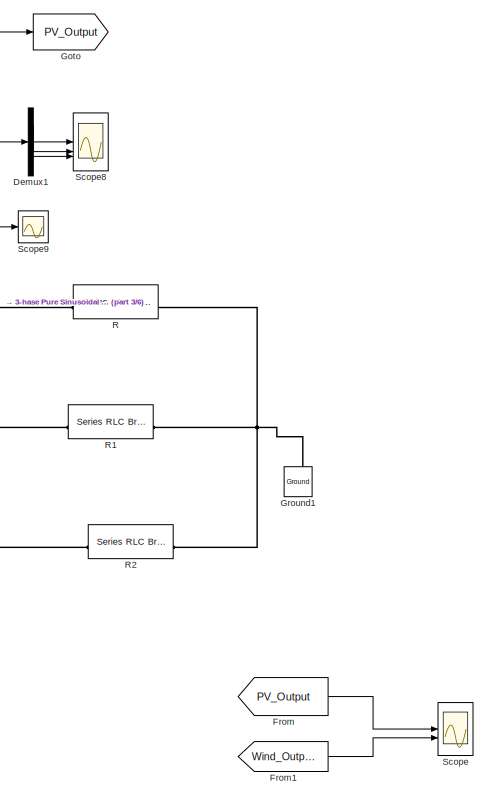
[diagram: root canvas - part 1/6, top right region]
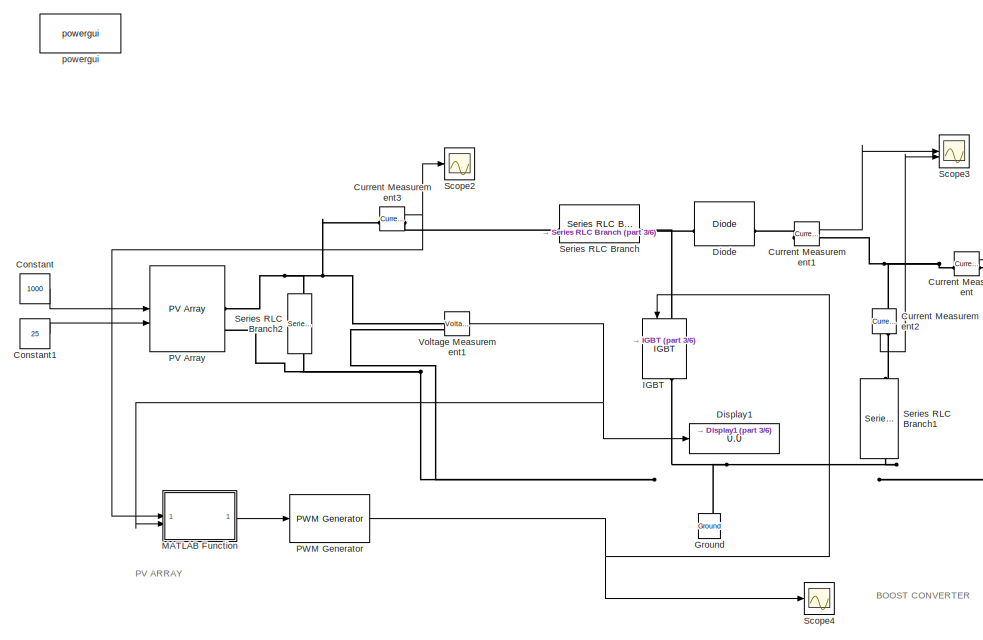
[diagram: root canvas - part 2/6, top left region]
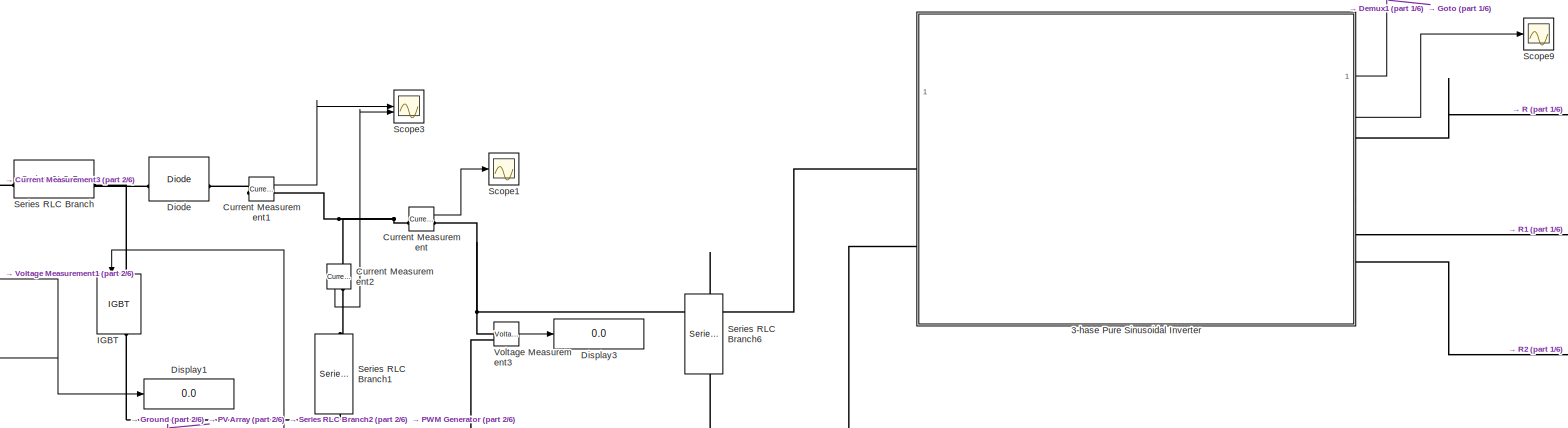
[diagram: root canvas - part 3/6, top center region]
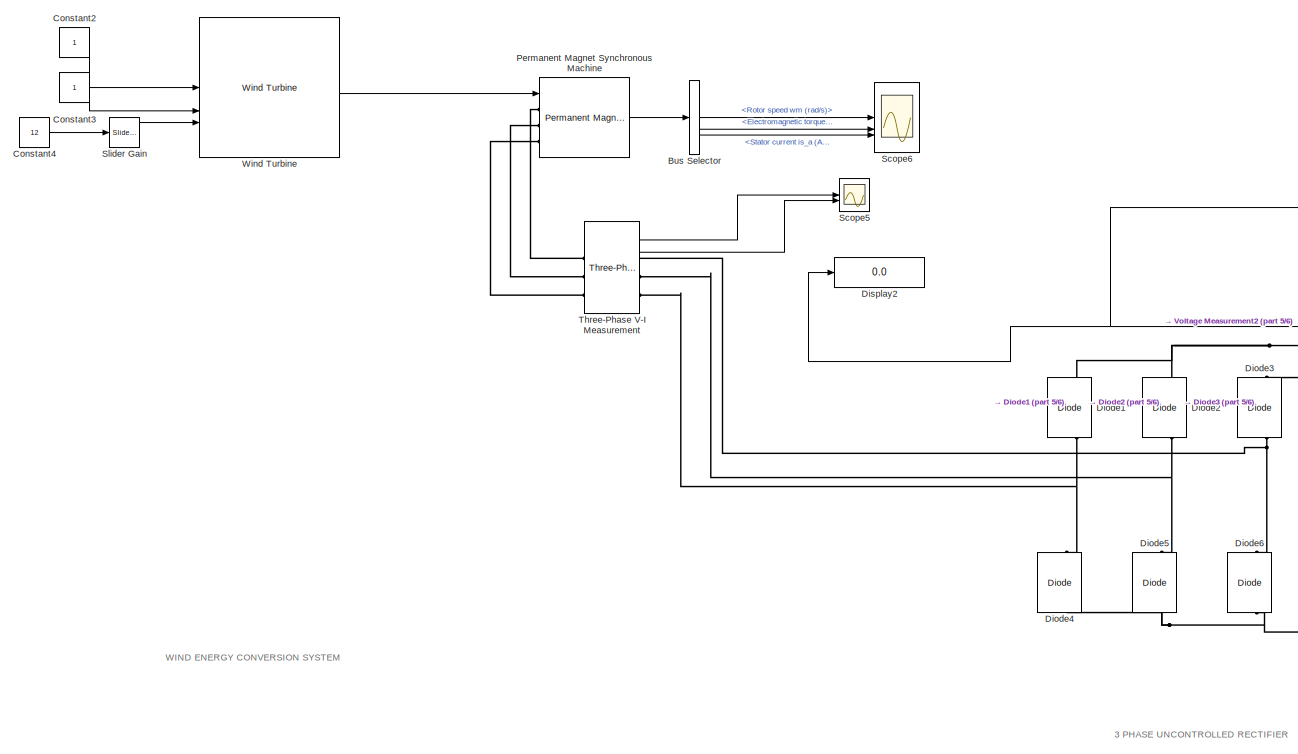
[diagram: root canvas - part 4/6, bottom left region]
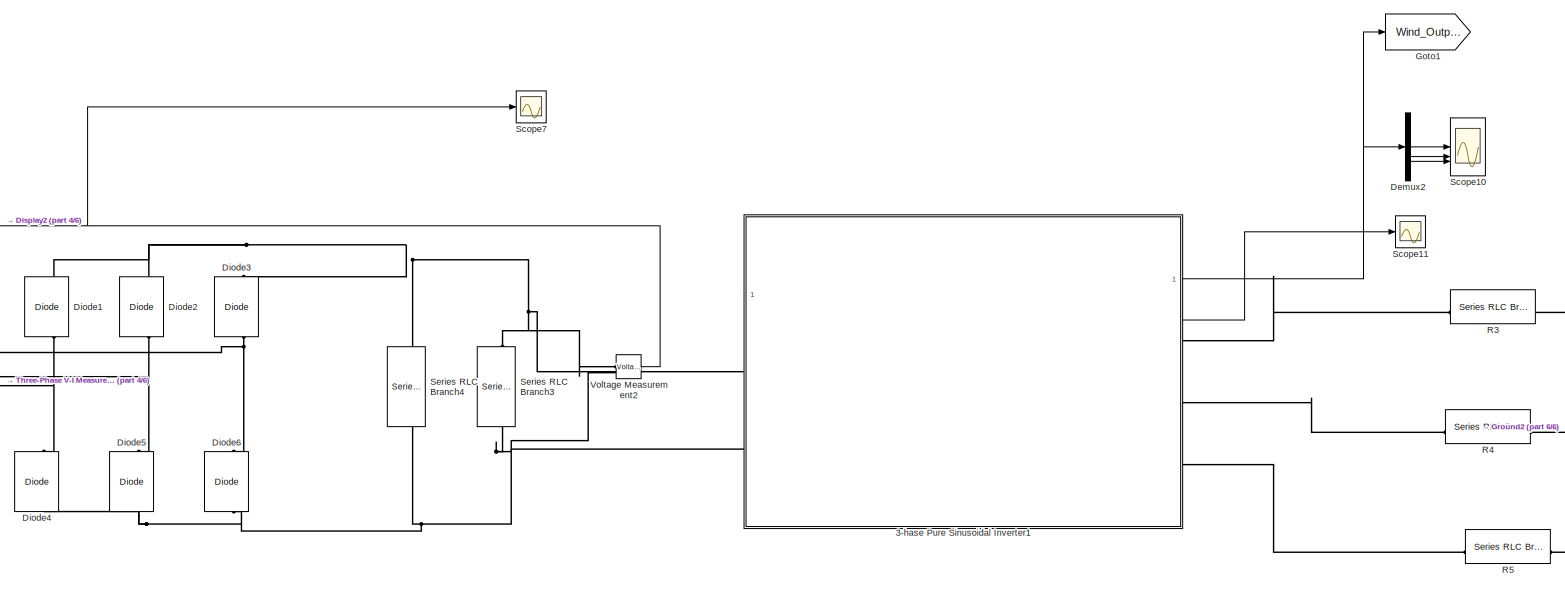
[diagram: root canvas - part 5/6, bottom center region]
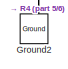
[diagram: root canvas - part 6/6, bottom right region]
MODEL slx_756d990b1790
KIND model
CONFIG AbsTol = auto
CONFIG EnableMultiTasking = off
CONFIG FixedStep = auto
CONFIG MaxStep = auto
CONFIG MinStep = auto
CONFIG RelTol = 1e-3
CONFIG SampleTimeConstraint = Unconstrained
CONFIG SolverName = VariableStepAuto
CONFIG StartTime = 0.0
CONFIG StopTime = 1
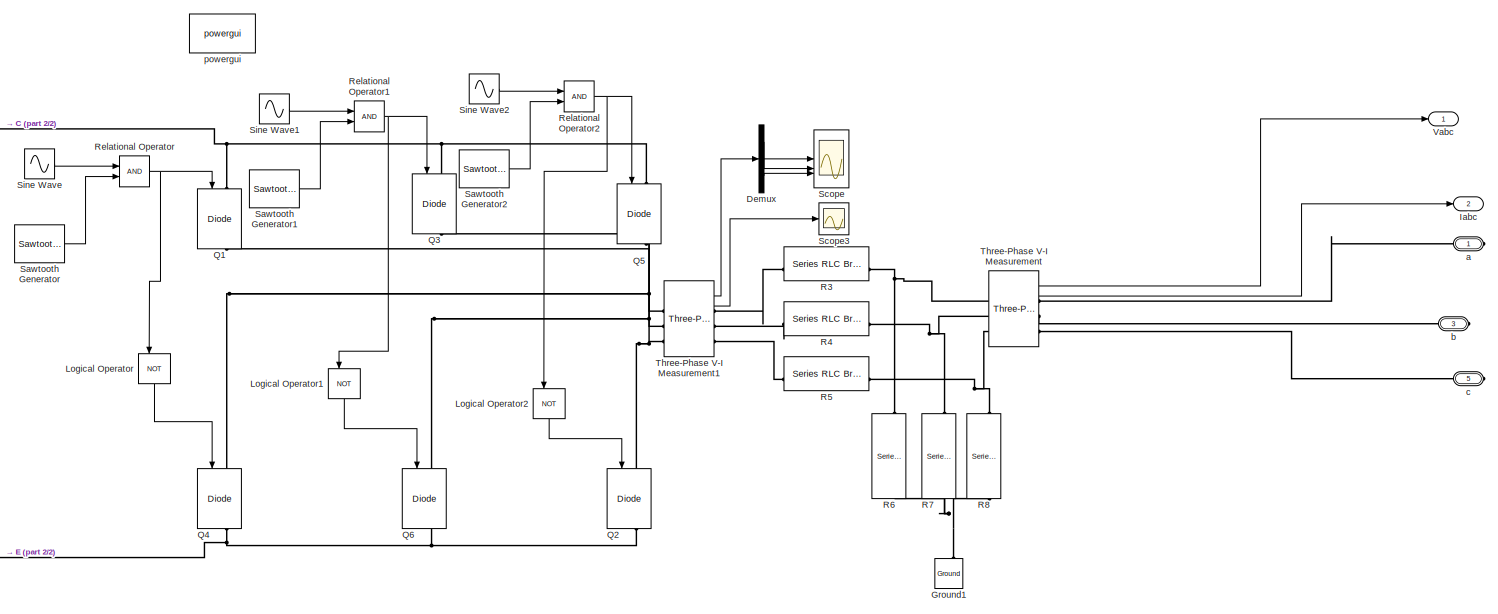
[diagram: 3-hase Pure Sinusoidal Inverter - part 1/2, most of the canvas]
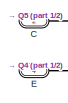
[diagram: 3-hase Pure Sinusoidal Inverter - part 2/2, middle left region]
BLOCK [SubSystem] 3-hase Pure Sinusoidal Inverter
BLOCK [PMIOPort] 3-hase Pure Sinusoidal Inverter/C
  Port = 2
  Side = Left
BLOCK [Demux] 3-hase Pure Sinusoidal Inverter/Demux
  Outputs = 3
BLOCK [PMIOPort] 3-hase Pure Sinusoidal Inverter/E
  Port = 4
  Side = Left
BLOCK [Reference] 3-hase Pure Sinusoidal Inverter/Ground1  REF=spsGroundLib/Ground
  LibrarySourceBlock = sps_lib/Utilities/Ground
  NameLocation = right
  SourceBlock = spsGroundLib/Ground
  SourceType = Ground
BLOCK [Outport] 3-hase Pure Sinusoidal Inverter/Iabc
  Port = 2
BLOCK [Logic] 3-hase Pure Sinusoidal Inverter/Logical Operator
  AllPortsSameDT = off
  NameLocation = left
  Operator = NOT
  OutDataTypeStr = boolean
BLOCK [Logic] 3-hase Pure Sinusoidal Inverter/Logical Operator1
  AllPortsSameDT = off
  NameLocation = left
  Operator = NOT
  OutDataTypeStr = boolean
BLOCK [Logic] 3-hase Pure Sinusoidal Inverter/Logical Operator2
  AllPortsSameDT = off
  NameLocation = left
  Operator = NOT
  OutDataTypeStr = boolean
BLOCK [Reference] 3-hase Pure Sinusoidal Inverter/Q1  REF=spsIGBTDiodeLib/IGBT//Diode
  LibrarySourceBlock = sps_lib/Power Electronics/IGBT//Diode
  NameLocation = left
  SourceBlock = spsIGBTDiodeLib/IGBT//Diode
  SourceType = IGBT/Diode
BLOCK [Reference] 3-hase Pure Sinusoidal Inverter/Q2  REF=spsIGBTDiodeLib/IGBT//Diode
  LibrarySourceBlock = sps_lib/Power Electronics/IGBT//Diode
  NameLocation = left
  SourceBlock = spsIGBTDiodeLib/IGBT//Diode
  SourceType = IGBT/Diode
BLOCK [Reference] 3-hase Pure Sinusoidal Inverter/Q3  REF=spsIGBTDiodeLib/IGBT//Diode
  LibrarySourceBlock = sps_lib/Power Electronics/IGBT//Diode
  NameLocation = left
  SourceBlock = spsIGBTDiodeLib/IGBT//Diode
  SourceType = IGBT/Diode
BLOCK [Reference] 3-hase Pure Sinusoidal Inverter/Q4  REF=spsIGBTDiodeLib/IGBT//Diode
  LibrarySourceBlock = sps_lib/Power Electronics/IGBT//Diode
  NameLocation = left
  SourceBlock = spsIGBTDiodeLib/IGBT//Diode
  SourceType = IGBT/Diode
BLOCK [Reference] 3-hase Pure Sinusoidal Inverter/Q5  REF=spsIGBTDiodeLib/IGBT//Diode
  LibrarySourceBlock = sps_lib/Power Electronics/IGBT//Diode
  NameLocation = left
  SourceBlock = spsIGBTDiodeLib/IGBT//Diode
  SourceType = IGBT/Diode
BLOCK [Reference] 3-hase Pure Sinusoidal Inverter/Q6  REF=spsIGBTDiodeLib/IGBT//Diode
  LibrarySourceBlock = sps_lib/Power Electronics/IGBT//Diode
  NameLocation = left
  SourceBlock = spsIGBTDiodeLib/IGBT//Diode
  SourceType = IGBT/Diode
BLOCK [Reference] 3-hase Pure Sinusoidal Inverter/R3  REF=spsSeriesRLCBranchLib/Series RLC Branch
  LibrarySourceBlock = sps_lib/Passives/Series RLC Branch
  SourceBlock = spsSeriesRLCBranchLib/Series RLC Branch
  SourceType = Series RLC Branch
BLOCK [Reference] 3-hase Pure Sinusoidal Inverter/R4  REF=spsSeriesRLCBranchLib/Series RLC Branch
  LibrarySourceBlock = sps_lib/Passives/Series RLC Branch
  SourceBlock = spsSeriesRLCBranchLib/Series RLC Branch
  SourceType = Series RLC Branch
BLOCK [Reference] 3-hase Pure Sinusoidal Inverter/R5  REF=spsSeriesRLCBranchLib/Series RLC Branch
  LibrarySourceBlock = sps_lib/Passives/Series RLC Branch
  SourceBlock = spsSeriesRLCBranchLib/Series RLC Branch
  SourceType = Series RLC Branch
BLOCK [Reference] 3-hase Pure Sinusoidal Inverter/R6  REF=spsSeriesRLCBranchLib/Series RLC Branch
  LibrarySourceBlock = sps_lib/Passives/Series RLC Branch
  NameLocation = left
  SourceBlock = spsSeriesRLCBranchLib/Series RLC Branch
  SourceType = Series RLC Branch
BLOCK [Reference] 3-hase Pure Sinusoidal Inverter/R7  REF=spsSeriesRLCBranchLib/Series RLC Branch
  LibrarySourceBlock = sps_lib/Passives/Series RLC Branch
  NameLocation = left
  SourceBlock = spsSeriesRLCBranchLib/Series RLC Branch
  SourceType = Series RLC Branch
BLOCK [Reference] 3-hase Pure Sinusoidal Inverter/R8  REF=spsSeriesRLCBranchLib/Series RLC Branch
  LibrarySourceBlock = sps_lib/Passives/Series RLC Branch
  NameLocation = left
  SourceBlock = spsSeriesRLCBranchLib/Series RLC Branch
  SourceType = Series RLC Branch
BLOCK [RelationalOperator] 3-hase Pure Sinusoidal Inverter/Relational Operator
  InputSameDT = off
  OutDataTypeStr = boolean
BLOCK [RelationalOperator] 3-hase Pure Sinusoidal Inverter/Relational Operator1
  InputSameDT = off
  OutDataTypeStr = boolean
BLOCK [RelationalOperator] 3-hase Pure Sinusoidal Inverter/Relational Operator2
  InputSameDT = off
  OutDataTypeStr = boolean
BLOCK [Reference] 3-hase Pure Sinusoidal Inverter/Sawtooth Generator  REF=spsSawtoothGeneratorLib/Sawtooth
Generator
  LibrarySourceBlock = sps_lib/Sources/Signal Generator Sources/Sawtooth\nGenerator
  SourceBlock = spsSawtoothGeneratorLib/Sawtooth\nGenerator
  SourceType = Sawtooth Generator
BLOCK [Reference] 3-hase Pure Sinusoidal Inverter/Sawtooth Generator1  REF=spsSawtoothGeneratorLib/Sawtooth
Generator
  LibrarySourceBlock = sps_lib/Sources/Signal Generator Sources/Sawtooth\nGenerator
  SourceBlock = spsSawtoothGeneratorLib/Sawtooth\nGenerator
  SourceType = Sawtooth Generator
BLOCK [Reference] 3-hase Pure Sinusoidal Inverter/Sawtooth Generator2  REF=spsSawtoothGeneratorLib/Sawtooth
Generator
  LibrarySourceBlock = sps_lib/Sources/Signal Generator Sources/Sawtooth\nGenerator
  SourceBlock = spsSawtoothGeneratorLib/Sawtooth\nGenerator
  SourceType = Sawtooth Generator
BLOCK [Scope] 3-hase Pure Sinusoidal Inverter/Scope
  Floating = off
  NumInputPorts = 3
  ScopeSpecificationString = Simulink.scopes.TimeScopeBlockCfg('CurrentConfiguration', extmgr.ConfigurationSet(extmgr.Configuration('Core','General UI',true),extmgr.Configuration('Core','Source UI',true),extmgr.Configuration('Sources','WiredSimulink',true,'DataLoggingLimitDataPoints',true,'DataLoggingSaveFormat','Array','DataLoggingDecimation','1','DataLoggingDecimateData',true),extmgr.Configuration('Visuals','Time Domain',tr...<+3310ch>
BLOCK [Scope] 3-hase Pure Sinusoidal Inverter/Scope3
  Floating = off
  NumInputPorts = 1
  ScopeSpecificationString = Simulink.scopes.TimeScopeBlockCfg('CurrentConfiguration', extmgr.ConfigurationSet(extmgr.Configuration('Core','General UI',true),extmgr.Configuration('Core','Source UI',true),extmgr.Configuration('Sources','WiredSimulink',true,'DataLoggingVariableName','ScopeData3'),extmgr.Configuration('Visuals','Time Domain',true),extmgr.Configuration('Tools','Plot Navigation',true),extmgr.Configuration('Tools',...<+40ch>
BLOCK [Sin] 3-hase Pure Sinusoidal Inverter/Sine Wave
  Amplitude = 0.9
  Frequency = 2*pi*50
  SampleTime = 0
BLOCK [Sin] 3-hase Pure Sinusoidal Inverter/Sine Wave1
  Amplitude = 0.9
  Frequency = 2*pi*50
  Phase = 120*(pi/180)
  SampleTime = 0
BLOCK [Sin] 3-hase Pure Sinusoidal Inverter/Sine Wave2
  Amplitude = 0.9
  Frequency = 2*pi*50
  Phase = 240*(pi/180)
  SampleTime = 0
BLOCK [Reference] 3-hase Pure Sinusoidal Inverter/Three-Phase V-I Measurement  REF=spsThreePhaseVIMeasurementLib/Three-Phase
V-I Measurement
  LibrarySourceBlock = sps_lib/Sensors and Measurements/Three-Phase\nV-I Measurement
  SourceBlock = spsThreePhaseVIMeasurementLib/Three-Phase\nV-I Measurement
  SourceType = Three-Phase VI Measurement
BLOCK [Reference] 3-hase Pure Sinusoidal Inverter/Three-Phase V-I Measurement1  REF=spsThreePhaseVIMeasurementLib/Three-Phase
V-I Measurement
  LibrarySourceBlock = sps_lib/Sensors and Measurements/Three-Phase\nV-I Measurement
  SourceBlock = spsThreePhaseVIMeasurementLib/Three-Phase\nV-I Measurement
  SourceType = Three-Phase VI Measurement
BLOCK [Outport] 3-hase Pure Sinusoidal Inverter/Vabc
BLOCK [PMIOPort] 3-hase Pure Sinusoidal Inverter/a
  Side = Right
BLOCK [PMIOPort] 3-hase Pure Sinusoidal Inverter/b
  Port = 3
  Side = Right
BLOCK [PMIOPort] 3-hase Pure Sinusoidal Inverter/c
  Port = 5
  Side = Right
BLOCK [Reference] 3-hase Pure Sinusoidal Inverter/powergui  REF=spspowerguiLib/powergui
  LibrarySourceBlock = sps_lib/powergui
  Priority = 1
  SourceBlock = spspowerguiLib/powergui
  SourceType = PSB option menu block
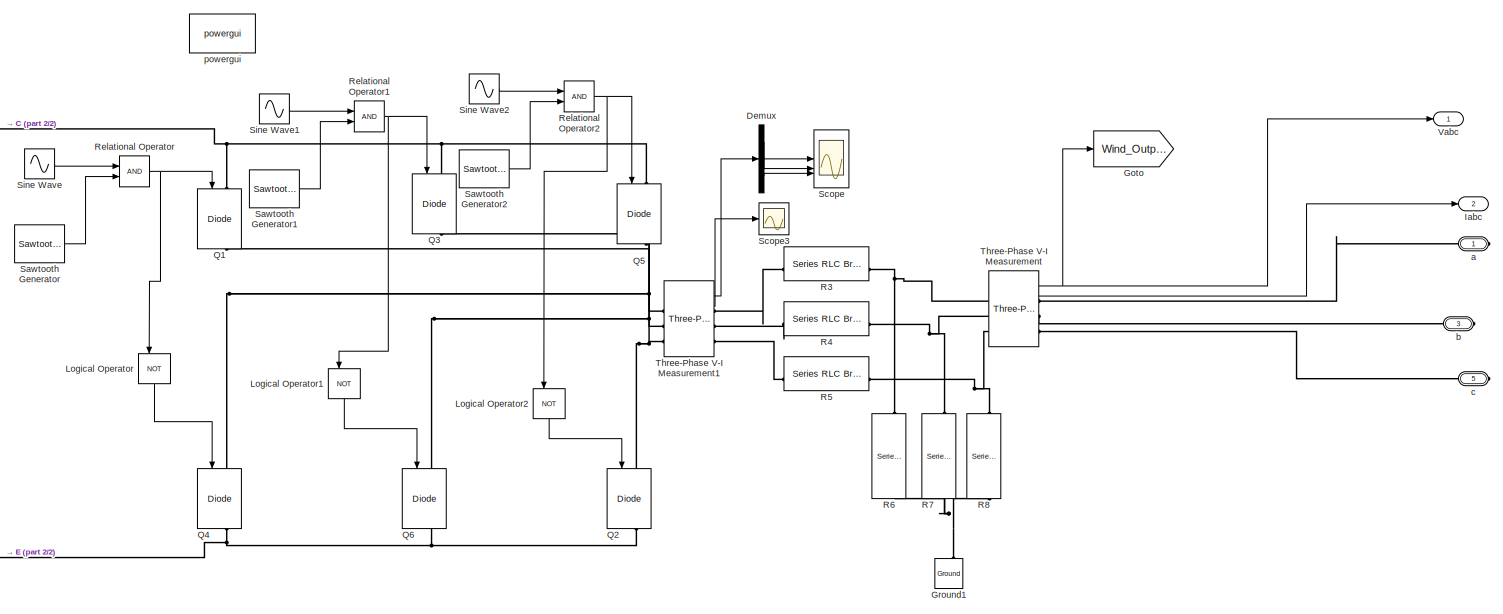
[diagram: 3-hase Pure Sinusoidal Inverter1 - part 1/2, most of the canvas]
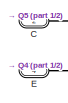
[diagram: 3-hase Pure Sinusoidal Inverter1 - part 2/2, middle left region]
BLOCK [SubSystem] 3-hase Pure Sinusoidal Inverter1
BLOCK [PMIOPort] 3-hase Pure Sinusoidal Inverter1/C
  Port = 2
  Side = Left
BLOCK [Demux] 3-hase Pure Sinusoidal Inverter1/Demux
  Outputs = 3
BLOCK [PMIOPort] 3-hase Pure Sinusoidal Inverter1/E
  Port = 4
  Side = Left
BLOCK [Goto] 3-hase Pure Sinusoidal Inverter1/Goto
  GotoTag = Wind_Output
BLOCK [Reference] 3-hase Pure Sinusoidal Inverter1/Ground1  REF=spsGroundLib/Ground
  LibrarySourceBlock = sps_lib/Utilities/Ground
  NameLocation = right
  SourceBlock = spsGroundLib/Ground
  SourceType = Ground
BLOCK [Outport] 3-hase Pure Sinusoidal Inverter1/Iabc
  Port = 2
BLOCK [Logic] 3-hase Pure Sinusoidal Inverter1/Logical Operator
  AllPortsSameDT = off
  NameLocation = left
  Operator = NOT
  OutDataTypeStr = boolean
BLOCK [Logic] 3-hase Pure Sinusoidal Inverter1/Logical Operator1
  AllPortsSameDT = off
  NameLocation = left
  Operator = NOT
  OutDataTypeStr = boolean
BLOCK [Logic] 3-hase Pure Sinusoidal Inverter1/Logical Operator2
  AllPortsSameDT = off
  NameLocation = left
  Operator = NOT
  OutDataTypeStr = boolean
BLOCK [Reference] 3-hase Pure Sinusoidal Inverter1/Q1  REF=spsIGBTDiodeLib/IGBT//Diode
  LibrarySourceBlock = sps_lib/Power Electronics/IGBT//Diode
  NameLocation = left
  SourceBlock = spsIGBTDiodeLib/IGBT//Diode
  SourceType = IGBT/Diode
BLOCK [Reference] 3-hase Pure Sinusoidal Inverter1/Q2  REF=spsIGBTDiodeLib/IGBT//Diode
  LibrarySourceBlock = sps_lib/Power Electronics/IGBT//Diode
  NameLocation = left
  SourceBlock = spsIGBTDiodeLib/IGBT//Diode
  SourceType = IGBT/Diode
BLOCK [Reference] 3-hase Pure Sinusoidal Inverter1/Q3  REF=spsIGBTDiodeLib/IGBT//Diode
  LibrarySourceBlock = sps_lib/Power Electronics/IGBT//Diode
  NameLocation = left
  SourceBlock = spsIGBTDiodeLib/IGBT//Diode
  SourceType = IGBT/Diode
BLOCK [Reference] 3-hase Pure Sinusoidal Inverter1/Q4  REF=spsIGBTDiodeLib/IGBT//Diode
  LibrarySourceBlock = sps_lib/Power Electronics/IGBT//Diode
  NameLocation = left
  SourceBlock = spsIGBTDiodeLib/IGBT//Diode
  SourceType = IGBT/Diode
BLOCK [Reference] 3-hase Pure Sinusoidal Inverter1/Q5  REF=spsIGBTDiodeLib/IGBT//Diode
  LibrarySourceBlock = sps_lib/Power Electronics/IGBT//Diode
  NameLocation = left
  SourceBlock = spsIGBTDiodeLib/IGBT//Diode
  SourceType = IGBT/Diode
BLOCK [Reference] 3-hase Pure Sinusoidal Inverter1/Q6  REF=spsIGBTDiodeLib/IGBT//Diode
  LibrarySourceBlock = sps_lib/Power Electronics/IGBT//Diode
  NameLocation = left
  SourceBlock = spsIGBTDiodeLib/IGBT//Diode
  SourceType = IGBT/Diode
BLOCK [Reference] 3-hase Pure Sinusoidal Inverter1/R3  REF=spsSeriesRLCBranchLib/Series RLC Branch
  LibrarySourceBlock = sps_lib/Passives/Series RLC Branch
  SourceBlock = spsSeriesRLCBranchLib/Series RLC Branch
  SourceType = Series RLC Branch
BLOCK [Reference] 3-hase Pure Sinusoidal Inverter1/R4  REF=spsSeriesRLCBranchLib/Series RLC Branch
  LibrarySourceBlock = sps_lib/Passives/Series RLC Branch
  SourceBlock = spsSeriesRLCBranchLib/Series RLC Branch
  SourceType = Series RLC Branch
BLOCK [Reference] 3-hase Pure Sinusoidal Inverter1/R5  REF=spsSeriesRLCBranchLib/Series RLC Branch
  LibrarySourceBlock = sps_lib/Passives/Series RLC Branch
  SourceBlock = spsSeriesRLCBranchLib/Series RLC Branch
  SourceType = Series RLC Branch
BLOCK [Reference] 3-hase Pure Sinusoidal Inverter1/R6  REF=spsSeriesRLCBranchLib/Series RLC Branch
  LibrarySourceBlock = sps_lib/Passives/Series RLC Branch
  NameLocation = left
  SourceBlock = spsSeriesRLCBranchLib/Series RLC Branch
  SourceType = Series RLC Branch
BLOCK [Reference] 3-hase Pure Sinusoidal Inverter1/R7  REF=spsSeriesRLCBranchLib/Series RLC Branch
  LibrarySourceBlock = sps_lib/Passives/Series RLC Branch
  NameLocation = left
  SourceBlock = spsSeriesRLCBranchLib/Series RLC Branch
  SourceType = Series RLC Branch
BLOCK [Reference] 3-hase Pure Sinusoidal Inverter1/R8  REF=spsSeriesRLCBranchLib/Series RLC Branch
  LibrarySourceBlock = sps_lib/Passives/Series RLC Branch
  NameLocation = left
  SourceBlock = spsSeriesRLCBranchLib/Series RLC Branch
  SourceType = Series RLC Branch
BLOCK [RelationalOperator] 3-hase Pure Sinusoidal Inverter1/Relational Operator
  InputSameDT = off
  OutDataTypeStr = boolean
BLOCK [RelationalOperator] 3-hase Pure Sinusoidal Inverter1/Relational Operator1
  InputSameDT = off
  OutDataTypeStr = boolean
BLOCK [RelationalOperator] 3-hase Pure Sinusoidal Inverter1/Relational Operator2
  InputSameDT = off
  OutDataTypeStr = boolean
BLOCK [Reference] 3-hase Pure Sinusoidal Inverter1/Sawtooth Generator  REF=spsSawtoothGeneratorLib/Sawtooth
Generator
  LibrarySourceBlock = sps_lib/Sources/Signal Generator Sources/Sawtooth\nGenerator
  SourceBlock = spsSawtoothGeneratorLib/Sawtooth\nGenerator
  SourceType = Sawtooth Generator
BLOCK [Reference] 3-hase Pure Sinusoidal Inverter1/Sawtooth Generator1  REF=spsSawtoothGeneratorLib/Sawtooth
Generator
  LibrarySourceBlock = sps_lib/Sources/Signal Generator Sources/Sawtooth\nGenerator
  SourceBlock = spsSawtoothGeneratorLib/Sawtooth\nGenerator
  SourceType = Sawtooth Generator
BLOCK [Reference] 3-hase Pure Sinusoidal Inverter1/Sawtooth Generator2  REF=spsSawtoothGeneratorLib/Sawtooth
Generator
  LibrarySourceBlock = sps_lib/Sources/Signal Generator Sources/Sawtooth\nGenerator
  SourceBlock = spsSawtoothGeneratorLib/Sawtooth\nGenerator
  SourceType = Sawtooth Generator
BLOCK [Scope] 3-hase Pure Sinusoidal Inverter1/Scope
  Floating = off
  NumInputPorts = 3
  ScopeSpecificationString = Simulink.scopes.TimeScopeBlockCfg('CurrentConfiguration', extmgr.ConfigurationSet(extmgr.Configuration('Core','General UI',true),extmgr.Configuration('Core','Source UI',true),extmgr.Configuration('Sources','WiredSimulink',true,'DataLoggingLimitDataPoints',true,'DataLoggingSaveFormat','Array','DataLoggingDecimation','1','DataLoggingDecimateData',true),extmgr.Configuration('Visuals','Time Domain',tr...<+3282ch>
BLOCK [Scope] 3-hase Pure Sinusoidal Inverter1/Scope3
  Floating = off
  NumInputPorts = 1
  ScopeSpecificationString = Simulink.scopes.TimeScopeBlockCfg('CurrentConfiguration', extmgr.ConfigurationSet(extmgr.Configuration('Core','General UI',true),extmgr.Configuration('Core','Source UI',true),extmgr.Configuration('Sources','WiredSimulink',true,'DataLoggingVariableName','ScopeData3'),extmgr.Configuration('Visuals','Time Domain',true),extmgr.Configuration('Tools','Plot Navigation',true),extmgr.Configuration('Tools',...<+40ch>
BLOCK [Sin] 3-hase Pure Sinusoidal Inverter1/Sine Wave
  Amplitude = 0.9
  Frequency = 2*pi*50
  SampleTime = 0
BLOCK [Sin] 3-hase Pure Sinusoidal Inverter1/Sine Wave1
  Amplitude = 0.9
  Frequency = 2*pi*50
  Phase = 120*(pi/180)
  SampleTime = 0
BLOCK [Sin] 3-hase Pure Sinusoidal Inverter1/Sine Wave2
  Amplitude = 0.9
  Frequency = 2*pi*50
  Phase = 240*(pi/180)
  SampleTime = 0
BLOCK [Reference] 3-hase Pure Sinusoidal Inverter1/Three-Phase V-I Measurement  REF=spsThreePhaseVIMeasurementLib/Three-Phase
V-I Measurement
  LibrarySourceBlock = sps_lib/Sensors and Measurements/Three-Phase\nV-I Measurement
  SourceBlock = spsThreePhaseVIMeasurementLib/Three-Phase\nV-I Measurement
  SourceType = Three-Phase VI Measurement
BLOCK [Reference] 3-hase Pure Sinusoidal Inverter1/Three-Phase V-I Measurement1  REF=spsThreePhaseVIMeasurementLib/Three-Phase
V-I Measurement
  LibrarySourceBlock = sps_lib/Sensors and Measurements/Three-Phase\nV-I Measurement
  SourceBlock = spsThreePhaseVIMeasurementLib/Three-Phase\nV-I Measurement
  SourceType = Three-Phase VI Measurement
BLOCK [Outport] 3-hase Pure Sinusoidal Inverter1/Vabc
BLOCK [PMIOPort] 3-hase Pure Sinusoidal Inverter1/a
  Side = Right
BLOCK [PMIOPort] 3-hase Pure Sinusoidal Inverter1/b
  Port = 3
  Side = Right
BLOCK [PMIOPort] 3-hase Pure Sinusoidal Inverter1/c
  Port = 5
  Side = Right
BLOCK [Reference] 3-hase Pure Sinusoidal Inverter1/powergui  REF=spspowerguiLib/powergui
  LibrarySourceBlock = sps_lib/powergui
  Priority = 1
  SourceBlock = spspowerguiLib/powergui
  SourceType = PSB option menu block
BLOCK [BusSelector] Bus Selector
  OutputSignals = Rotor speed wm (rad/s),Electromagnetic torque Te (N*m),Stator current is_a (A)
BLOCK [Constant] Constant
  Value = 1000
BLOCK [Constant] Constant1
  Value = 25
BLOCK [Constant] Constant2
BLOCK [Constant] Constant3
BLOCK [Constant] Constant4
  Value = 12
BLOCK [Reference] Current Measurement  REF=spsCurrentMeasurementLib/Current Measurement
  LibrarySourceBlock = sps_lib/Sensors and Measurements/Current Measurement
  SourceBlock = spsCurrentMeasurementLib/Current Measurement
  SourceType = Current Measurement
  UserDataPersistent = on
BLOCK [Reference] Current Measurement1  REF=spsCurrentMeasurementLib/Current Measurement
  LibrarySourceBlock = sps_lib/Sensors and Measurements/Current Measurement
  SourceBlock = spsCurrentMeasurementLib/Current Measurement
  SourceType = Current Measurement
  UserDataPersistent = on
BLOCK [Reference] Current Measurement2  REF=spsCurrentMeasurementLib/Current Measurement
  LibrarySourceBlock = sps_lib/Sensors and Measurements/Current Measurement
  NameLocation = left
  SourceBlock = spsCurrentMeasurementLib/Current Measurement
  SourceType = Current Measurement
  UserDataPersistent = on
BLOCK [Reference] Current Measurement3  REF=spsCurrentMeasurementLib/Current Measurement
  LibrarySourceBlock = sps_lib/Sensors and Measurements/Current Measurement
  SourceBlock = spsCurrentMeasurementLib/Current Measurement
  SourceType = Current Measurement
  UserDataPersistent = on
BLOCK [Demux] Demux1
  Outputs = 3
BLOCK [Demux] Demux2
  Outputs = 3
BLOCK [Reference] Diode  REF=spsDiodeLib/Diode
  LibrarySourceBlock = sps_lib/Power Electronics/Diode
  SourceBlock = spsDiodeLib/Diode
  SourceType = Diode
BLOCK [Reference] Diode1  REF=spsDiodeLib/Diode
  LibrarySourceBlock = sps_lib/Power Electronics/Diode
  NameLocation = right
  SourceBlock = spsDiodeLib/Diode
  SourceType = Diode
BLOCK [Reference] Diode2  REF=spsDiodeLib/Diode
  LibrarySourceBlock = sps_lib/Power Electronics/Diode
  NameLocation = right
  SourceBlock = spsDiodeLib/Diode
  SourceType = Diode
BLOCK [Reference] Diode3  REF=spsDiodeLib/Diode
  LibrarySourceBlock = sps_lib/Power Electronics/Diode
  NameLocation = right
  SourceBlock = spsDiodeLib/Diode
  SourceType = Diode
BLOCK [Reference] Diode4  REF=spsDiodeLib/Diode
  LibrarySourceBlock = sps_lib/Power Electronics/Diode
  NameLocation = right
  SourceBlock = spsDiodeLib/Diode
  SourceType = Diode
BLOCK [Reference] Diode5  REF=spsDiodeLib/Diode
  LibrarySourceBlock = sps_lib/Power Electronics/Diode
  NameLocation = right
  SourceBlock = spsDiodeLib/Diode
  SourceType = Diode
BLOCK [Reference] Diode6  REF=spsDiodeLib/Diode
  LibrarySourceBlock = sps_lib/Power Electronics/Diode
  NameLocation = right
  SourceBlock = spsDiodeLib/Diode
  SourceType = Diode
BLOCK [Display] Display1
  Decimation = 1
BLOCK [Display] Display2
  Decimation = 1
BLOCK [Display] Display3
  Decimation = 1
BLOCK [From] From
  GotoTag = PV_Output
BLOCK [From] From1
  GotoTag = Wind_Output
BLOCK [Goto] Goto
  GotoTag = PV_Output
BLOCK [Goto] Goto1
  GotoTag = Wind_Output
BLOCK [Reference] Ground  REF=spsGroundLib/Ground
  LibrarySourceBlock = sps_lib/Utilities/Ground
  NameLocation = right
  SourceBlock = spsGroundLib/Ground
  SourceType = Ground
BLOCK [Reference] Ground1  REF=spsGroundLib/Ground
  LibrarySourceBlock = sps_lib/Utilities/Ground
  NameLocation = right
  SourceBlock = spsGroundLib/Ground
  SourceType = Ground
BLOCK [Reference] Ground2  REF=spsGroundLib/Ground
  LibrarySourceBlock = sps_lib/Utilities/Ground
  NameLocation = right
  SourceBlock = spsGroundLib/Ground
  SourceType = Ground
BLOCK [Reference] IGBT  REF=spsIGBTLib/IGBT
  LibrarySourceBlock = sps_lib/Power Electronics/IGBT
  NameLocation = left
  SourceBlock = spsIGBTLib/IGBT
  SourceType = IGBT
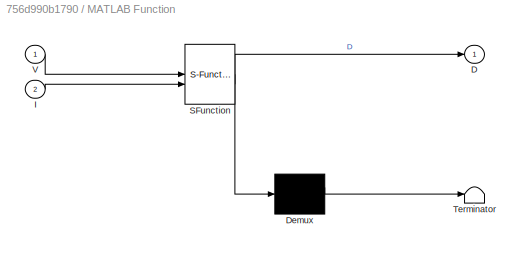
BLOCK [SubSystem] MATLAB Function
  ErrorFcn = Stateflow.Translate.translate
  PermitHierarchicalResolution = ExplicitOnly
  SFBlockType = MATLAB Function
  TreatAsAtomicUnit = on
BLOCK [Demux] MATLAB Function/ Demux 
  Outputs = 1
BLOCK [S-Function] MATLAB Function/ SFunction 
  EnableBusSupport = on
  FunctionName = sf_sfun
  PortCounts = [2 2]
  SFcnIsStateOwnerBlock = off
  SFunctionDeploymentMode = off
  Tag = Stateflow S-Function 2
BLOCK [Terminator] MATLAB Function/ Terminator 
BLOCK [Outport] MATLAB Function/D
BLOCK [Inport] MATLAB Function/I
  Port = 2
BLOCK [Inport] MATLAB Function/V
BLOCK [Reference] PV Array  REF=spsPVArrayLib/PV Array
  LibrarySourceBlock = sps_lib/Sources/PV Array
  SourceBlock = spsPVArrayLib/PV Array
  SourceType = PV array
BLOCK [Reference] PWM Generator  REF=eePwmGenerator/PWM Generator
  LibrarySourceBlock = ee_sl_lib/Pulse Width\nModulation/PWM Generator
  SourceBlock = eePwmGenerator/PWM Generator
  SourceType = PWM Generator
BLOCK [Reference] Permanent Magnet Synchronous Machine  REF=spsPermanentMagnetSynchronousMachineLib/Permanent Magnet
Synchronous Machine
  LibrarySourceBlock = sps_lib/Electrical Machines/Permanent Magnet\nSynchronous Machine
  SourceBlock = spsPermanentMagnetSynchronousMachineLib/Permanent Magnet\nSynchronous Machine
  SourceType = Permanent Magnet Synchronous Machine
BLOCK [Reference] R  REF=spsSeriesRLCBranchLib/Series RLC Branch
  LibrarySourceBlock = sps_lib/Passives/Series RLC Branch
  SourceBlock = spsSeriesRLCBranchLib/Series RLC Branch
  SourceType = Series RLC Branch
BLOCK [Reference] R1  REF=spsSeriesRLCBranchLib/Series RLC Branch
  LibrarySourceBlock = sps_lib/Passives/Series RLC Branch
  SourceBlock = spsSeriesRLCBranchLib/Series RLC Branch
  SourceType = Series RLC Branch
BLOCK [Reference] R2  REF=spsSeriesRLCBranchLib/Series RLC Branch
  LibrarySourceBlock = sps_lib/Passives/Series RLC Branch
  SourceBlock = spsSeriesRLCBranchLib/Series RLC Branch
  SourceType = Series RLC Branch
BLOCK [Reference] R3  REF=spsSeriesRLCBranchLib/Series RLC Branch
  LibrarySourceBlock = sps_lib/Passives/Series RLC Branch
  SourceBlock = spsSeriesRLCBranchLib/Series RLC Branch
  SourceType = Series RLC Branch
BLOCK [Reference] R4  REF=spsSeriesRLCBranchLib/Series RLC Branch
  LibrarySourceBlock = sps_lib/Passives/Series RLC Branch
  SourceBlock = spsSeriesRLCBranchLib/Series RLC Branch
  SourceType = Series RLC Branch
BLOCK [Reference] R5  REF=spsSeriesRLCBranchLib/Series RLC Branch
  LibrarySourceBlock = sps_lib/Passives/Series RLC Branch
  SourceBlock = spsSeriesRLCBranchLib/Series RLC Branch
  SourceType = Series RLC Branch
BLOCK [Scope] Scope
  Floating = off
  NumInputPorts = 2
  ScopeSpecificationString = Simulink.scopes.TimeScopeBlockCfg('CurrentConfiguration', extmgr.ConfigurationSet(extmgr.Configuration('Core','General UI',true),extmgr.Configuration('Core','Source UI',true),extmgr.Configuration('Sources','WiredSimulink',true,'DataLoggingVariableName','ScopeData1','DataLoggingSaveFormat','Array','DataLoggingLimitDataPoints',true,'DataLoggingDecimation','1'),extmgr.Configuration('Visuals','Time Do...<+2465ch>
BLOCK [Scope] Scope1
  Floating = off
  NumInputPorts = 1
  ScopeSpecificationString = Simulink.scopes.TimeScopeBlockCfg('CurrentConfiguration', extmgr.ConfigurationSet(extmgr.Configuration('Core','General UI',true),extmgr.Configuration('Core','Source UI',true),extmgr.Configuration('Sources','WiredSimulink',true,'DataLoggingVariableName','ScopeData2'),extmgr.Configuration('Visuals','Time Domain',true,'SerializedDisplays',{struct('MinYLimReal','-0.17987','MaxYLimReal','1.6188','YLabe...<+1540ch>
BLOCK [Scope] Scope10
  Floating = off
  NumInputPorts = 3
  ScopeSpecificationString = Simulink.scopes.TimeScopeBlockCfg('CurrentConfiguration', extmgr.ConfigurationSet(extmgr.Configuration('Core','General UI',true),extmgr.Configuration('Core','Source UI',true),extmgr.Configuration('Sources','WiredSimulink',true,'DataLoggingVariableName','ScopeData4','DataLoggingLimitDataPoints',true,'DataLoggingSaveFormat','Array','DataLoggingDecimation','1','DataLoggingDecimateData',true),extmgr.C...<+3322ch>
BLOCK [Scope] Scope11
  Floating = off
  NumInputPorts = 1
  ScopeSpecificationString = Simulink.scopes.TimeScopeBlockCfg('CurrentConfiguration', extmgr.ConfigurationSet(extmgr.Configuration('Core','General UI',true),extmgr.Configuration('Core','Source UI',true),extmgr.Configuration('Sources','WiredSimulink',true,'DataLoggingVariableName','ScopeData5'),extmgr.Configuration('Visuals','Time Domain',true,'SerializedDisplays',{struct('MinYLimReal','-0.8322','MaxYLimReal','0.82695','YLabe...<+1699ch>
BLOCK [Scope] Scope2
  Floating = off
  NumInputPorts = 1
  ScopeSpecificationString = Simulink.scopes.TimeScopeBlockCfg('CurrentConfiguration', extmgr.ConfigurationSet(extmgr.Configuration('Core','General UI',true),extmgr.Configuration('Core','Source UI',true),extmgr.Configuration('Sources','WiredSimulink',true,'DataLoggingVariableName','ScopeData3'),extmgr.Configuration('Visuals','Time Domain',true,'SerializedDisplays',{struct('MinYLimReal','-0.29318','MaxYLimReal','2.63863','YLab...<+1543ch>
BLOCK [Scope] Scope3
  Floating = off
  NumInputPorts = 2
  ScopeSpecificationString = Simulink.scopes.TimeScopeBlockCfg('CurrentConfiguration', extmgr.ConfigurationSet(extmgr.Configuration('Core','General UI',true),extmgr.Configuration('Core','Source UI',true),extmgr.Configuration('Sources','WiredSimulink',true),extmgr.Configuration('Visuals','Time Domain',true,'SerializedDisplays',{struct('MinYLimReal','-0.35247','MaxYLimReal','2.6452','YLabelReal','','MinYLimMag','0.00000','MaxYL...<+2384ch>
BLOCK [Scope] Scope4
  Floating = off
  NumInputPorts = 1
  ScopeSpecificationString = Simulink.scopes.TimeScopeBlockCfg('CurrentConfiguration', extmgr.ConfigurationSet(extmgr.Configuration('Core','General UI',true),extmgr.Configuration('Core','Source UI',true),extmgr.Configuration('Sources','WiredSimulink',true,'DataLoggingVariableName','ScopeData4'),extmgr.Configuration('Visuals','Time Domain',true,'SerializedDisplays',{struct('MinYLimReal','-0.125','MaxYLimReal','1.125','YLabelRe...<+1549ch>
BLOCK [Scope] Scope5
  Floating = off
  NumInputPorts = 2
  ScopeSpecificationString = Simulink.scopes.TimeScopeBlockCfg('CurrentConfiguration', extmgr.ConfigurationSet(extmgr.Configuration('Core','General UI',true),extmgr.Configuration('Core','Source UI',true),extmgr.Configuration('Sources','WiredSimulink',true,'DataLoggingVariableName','ScopeData5'),extmgr.Configuration('Visuals','Time Domain',true,'SerializedDisplays',{struct('MinYLimReal','-939.59717','MaxYLimReal','939.59628','...<+2455ch>
BLOCK [Scope] Scope6
  Floating = off
  NumInputPorts = 3
  ScopeSpecificationString = Simulink.scopes.TimeScopeBlockCfg('CurrentConfiguration', extmgr.ConfigurationSet(extmgr.Configuration('Core','General UI',true),extmgr.Configuration('Core','Source UI',true),extmgr.Configuration('Sources','WiredSimulink',true,'DataLoggingVariableName','ScopeData6'),extmgr.Configuration('Visuals','Time Domain',true,'SerializedDisplays',{struct('MinYLimReal','-6.90689','MaxYLimReal','62.16197','YLa...<+3104ch>
BLOCK [Scope] Scope7
  Floating = off
  NumInputPorts = 1
  ScopeSpecificationString = Simulink.scopes.TimeScopeBlockCfg('CurrentConfiguration', extmgr.ConfigurationSet(extmgr.Configuration('Core','General UI',true),extmgr.Configuration('Core','Source UI',true),extmgr.Configuration('Sources','WiredSimulink',true,'DataLoggingVariableName','ScopeData7'),extmgr.Configuration('Visuals','Time Domain',true,'SerializedDisplays',{struct('MinYLimReal','-7.21764','MaxYLimReal','64.95873','YLa...<+1572ch>
BLOCK [Scope] Scope8
  Floating = off
  NumInputPorts = 3
  ScopeSpecificationString = Simulink.scopes.TimeScopeBlockCfg('CurrentConfiguration', extmgr.ConfigurationSet(extmgr.Configuration('Core','General UI',true),extmgr.Configuration('Core','Source UI',true),extmgr.Configuration('Sources','WiredSimulink',true,'DataLoggingVariableName','ScopeData1','DataLoggingLimitDataPoints',true,'DataLoggingSaveFormat','Array','DataLoggingDecimation','1','DataLoggingDecimateData',true),extmgr.C...<+3336ch>
BLOCK [Scope] Scope9
  Floating = off
  NumInputPorts = 1
  ScopeSpecificationString = Simulink.scopes.TimeScopeBlockCfg('CurrentConfiguration', extmgr.ConfigurationSet(extmgr.Configuration('Core','General UI',true),extmgr.Configuration('Core','Source UI',true),extmgr.Configuration('Sources','WiredSimulink',true,'DataLoggingVariableName','ScopeData2'),extmgr.Configuration('Visuals','Time Domain',true,'SerializedDisplays',{struct('MinYLimReal','-0.07436','MaxYLimReal','0.66921','YLab...<+1700ch>
BLOCK [Reference] Series RLC Branch  REF=spsSeriesRLCBranchLib/Series RLC Branch
  LibrarySourceBlock = sps_lib/Passives/Series RLC Branch
  SourceBlock = spsSeriesRLCBranchLib/Series RLC Branch
  SourceType = Series RLC Branch
BLOCK [Reference] Series RLC Branch1  REF=spsSeriesRLCBranchLib/Series RLC Branch
  LibrarySourceBlock = sps_lib/Passives/Series RLC Branch
  NameLocation = left
  SourceBlock = spsSeriesRLCBranchLib/Series RLC Branch
  SourceType = Series RLC Branch
BLOCK [Reference] Series RLC Branch2  REF=spsSeriesRLCBranchLib/Series RLC Branch
  LibrarySourceBlock = sps_lib/Passives/Series RLC Branch
  NameLocation = left
  SourceBlock = spsSeriesRLCBranchLib/Series RLC Branch
  SourceType = Series RLC Branch
BLOCK [Reference] Series RLC Branch3  REF=spsSeriesRLCBranchLib/Series RLC Branch
  LibrarySourceBlock = sps_lib/Passives/Series RLC Branch
  NameLocation = left
  SourceBlock = spsSeriesRLCBranchLib/Series RLC Branch
  SourceType = Series RLC Branch
BLOCK [Reference] Series RLC Branch4  REF=spsSeriesRLCBranchLib/Series RLC Branch
  LibrarySourceBlock = sps_lib/Passives/Series RLC Branch
  NameLocation = left
  SourceBlock = spsSeriesRLCBranchLib/Series RLC Branch
  SourceType = Series RLC Branch
BLOCK [Reference] Series RLC Branch6  REF=spsSeriesRLCBranchLib/Series RLC Branch
  LibrarySourceBlock = sps_lib/Passives/Series RLC Branch
  NameLocation = left
  SourceBlock = spsSeriesRLCBranchLib/Series RLC Branch
  SourceType = Series RLC Branch
BLOCK [Reference] Slider Gain  REF=simulink/Math
Operations/Slider
Gain
  SourceBlock = simulink/Math\nOperations/Slider\nGain
  SourceType = Slider Gain
BLOCK [Reference] Three-Phase V-I Measurement  REF=spsThreePhaseVIMeasurementLib/Three-Phase
V-I Measurement
  LibrarySourceBlock = sps_lib/Sensors and Measurements/Three-Phase\nV-I Measurement
  SourceBlock = spsThreePhaseVIMeasurementLib/Three-Phase\nV-I Measurement
  SourceType = Three-Phase VI Measurement
BLOCK [Reference] Voltage Measurement1  REF=spsVoltageMeasurementLib/Voltage Measurement
  LibrarySourceBlock = sps_lib/Sensors and Measurements/Voltage Measurement
  SourceBlock = spsVoltageMeasurementLib/Voltage Measurement
  SourceType = Voltage Measurement
  UserDataPersistent = on
BLOCK [Reference] Voltage Measurement2  REF=spsVoltageMeasurementLib/Voltage Measurement
  LibrarySourceBlock = sps_lib/Sensors and Measurements/Voltage Measurement
  SourceBlock = spsVoltageMeasurementLib/Voltage Measurement
  SourceType = Voltage Measurement
  UserDataPersistent = on
BLOCK [Reference] Voltage Measurement3  REF=spsVoltageMeasurementLib/Voltage Measurement
  LibrarySourceBlock = sps_lib/Sensors and Measurements/Voltage Measurement
  SourceBlock = spsVoltageMeasurementLib/Voltage Measurement
  SourceType = Voltage Measurement
  UserDataPersistent = on
BLOCK [Reference] Wind Turbine  REF=spsWindTurbineLib/Wind Turbine
  LibrarySourceBlock = sps_lib/Electrical Machines/Wind Turbine
  SourceBlock = spsWindTurbineLib/Wind Turbine
  SourceType = Wind Turbine
BLOCK [Reference] powergui  REF=sps_lib/powergui
  LibrarySourceBlock = sps_lib/powergui
  Priority = 1
  SourceBlock = sps_lib/powergui
  SourceType = PSB option menu block
ANNOTATION (root): BOOST CONVERTER
ANNOTATION (root): 3 PHASE UNCONTROLLED RECTIFIER
ANNOTATION (root): WIND ENERGY CONVERSION SYSTEM
ANNOTATION (root): PV ARRAY
LINE 3-hase Pure Sinusoidal Inverter/Demux:1 -> 3-hase Pure Sinusoidal Inverter/Scope:1
LINE 3-hase Pure Sinusoidal Inverter/Demux:2 -> 3-hase Pure Sinusoidal Inverter/Scope:2
LINE 3-hase Pure Sinusoidal Inverter/Demux:3 -> 3-hase Pure Sinusoidal Inverter/Scope:3
LINE 3-hase Pure Sinusoidal Inverter/Logical Operator1:1 -> 3-hase Pure Sinusoidal Inverter/Q6:1
LINE 3-hase Pure Sinusoidal Inverter/Logical Operator2:1 -> 3-hase Pure Sinusoidal Inverter/Q2:1
LINE 3-hase Pure Sinusoidal Inverter/Logical Operator:1 -> 3-hase Pure Sinusoidal Inverter/Q4:1
NET 3-hase Pure Sinusoidal Inverter/Relational Operator1:1 -> 3-hase Pure Sinusoidal Inverter/Logical Operator1:1, 3-hase Pure Sinusoidal Inverter/Q3:1
NET 3-hase Pure Sinusoidal Inverter/Relational Operator2:1 -> 3-hase Pure Sinusoidal Inverter/Logical Operator2:1, 3-hase Pure Sinusoidal Inverter/Q5:1
NET 3-hase Pure Sinusoidal Inverter/Relational Operator:1 -> 3-hase Pure Sinusoidal Inverter/Logical Operator:1, 3-hase Pure Sinusoidal Inverter/Q1:1
LINE 3-hase Pure Sinusoidal Inverter/Sawtooth Generator1:1 -> 3-hase Pure Sinusoidal Inverter/Relational Operator1:2
LINE 3-hase Pure Sinusoidal Inverter/Sawtooth Generator2:1 -> 3-hase Pure Sinusoidal Inverter/Relational Operator2:2
LINE 3-hase Pure Sinusoidal Inverter/Sawtooth Generator:1 -> 3-hase Pure Sinusoidal Inverter/Relational Operator:2
LINE 3-hase Pure Sinusoidal Inverter/Sine Wave1:1 -> 3-hase Pure Sinusoidal Inverter/Relational Operator1:1
LINE 3-hase Pure Sinusoidal Inverter/Sine Wave2:1 -> 3-hase Pure Sinusoidal Inverter/Relational Operator2:1
LINE 3-hase Pure Sinusoidal Inverter/Sine Wave:1 -> 3-hase Pure Sinusoidal Inverter/Relational Operator:1
LINE 3-hase Pure Sinusoidal Inverter/Three-Phase V-I Measurement1:1 -> 3-hase Pure Sinusoidal Inverter/Demux:1
LINE 3-hase Pure Sinusoidal Inverter/Three-Phase V-I Measurement1:2 -> 3-hase Pure Sinusoidal Inverter/Scope3:1
LINE 3-hase Pure Sinusoidal Inverter/Three-Phase V-I Measurement:1 -> 3-hase Pure Sinusoidal Inverter/Vabc:1
LINE 3-hase Pure Sinusoidal Inverter/Three-Phase V-I Measurement:2 -> 3-hase Pure Sinusoidal Inverter/Iabc:1
LINE 3-hase Pure Sinusoidal Inverter1/Demux:1 -> 3-hase Pure Sinusoidal Inverter1/Scope:1
LINE 3-hase Pure Sinusoidal Inverter1/Demux:2 -> 3-hase Pure Sinusoidal Inverter1/Scope:2
LINE 3-hase Pure Sinusoidal Inverter1/Demux:3 -> 3-hase Pure Sinusoidal Inverter1/Scope:3
LINE 3-hase Pure Sinusoidal Inverter1/Logical Operator1:1 -> 3-hase Pure Sinusoidal Inverter1/Q6:1
LINE 3-hase Pure Sinusoidal Inverter1/Logical Operator2:1 -> 3-hase Pure Sinusoidal Inverter1/Q2:1
LINE 3-hase Pure Sinusoidal Inverter1/Logical Operator:1 -> 3-hase Pure Sinusoidal Inverter1/Q4:1
NET 3-hase Pure Sinusoidal Inverter1/Relational Operator1:1 -> 3-hase Pure Sinusoidal Inverter1/Logical Operator1:1, 3-hase Pure Sinusoidal Inverter1/Q3:1
NET 3-hase Pure Sinusoidal Inverter1/Relational Operator2:1 -> 3-hase Pure Sinusoidal Inverter1/Logical Operator2:1, 3-hase Pure Sinusoidal Inverter1/Q5:1
NET 3-hase Pure Sinusoidal Inverter1/Relational Operator:1 -> 3-hase Pure Sinusoidal Inverter1/Logical Operator:1, 3-hase Pure Sinusoidal Inverter1/Q1:1
LINE 3-hase Pure Sinusoidal Inverter1/Sawtooth Generator1:1 -> 3-hase Pure Sinusoidal Inverter1/Relational Operator1:2
LINE 3-hase Pure Sinusoidal Inverter1/Sawtooth Generator2:1 -> 3-hase Pure Sinusoidal Inverter1/Relational Operator2:2
LINE 3-hase Pure Sinusoidal Inverter1/Sawtooth Generator:1 -> 3-hase Pure Sinusoidal Inverter1/Relational Operator:2
LINE 3-hase Pure Sinusoidal Inverter1/Sine Wave1:1 -> 3-hase Pure Sinusoidal Inverter1/Relational Operator1:1
LINE 3-hase Pure Sinusoidal Inverter1/Sine Wave2:1 -> 3-hase Pure Sinusoidal Inverter1/Relational Operator2:1
LINE 3-hase Pure Sinusoidal Inverter1/Sine Wave:1 -> 3-hase Pure Sinusoidal Inverter1/Relational Operator:1
LINE 3-hase Pure Sinusoidal Inverter1/Three-Phase V-I Measurement1:1 -> 3-hase Pure Sinusoidal Inverter1/Demux:1
LINE 3-hase Pure Sinusoidal Inverter1/Three-Phase V-I Measurement1:2 -> 3-hase Pure Sinusoidal Inverter1/Scope3:1
NET 3-hase Pure Sinusoidal Inverter1/Three-Phase V-I Measurement:1 -> 3-hase Pure Sinusoidal Inverter1/Goto:1, 3-hase Pure Sinusoidal Inverter1/Vabc:1
LINE 3-hase Pure Sinusoidal Inverter1/Three-Phase V-I Measurement:2 -> 3-hase Pure Sinusoidal Inverter1/Iabc:1
NET 3-hase Pure Sinusoidal Inverter1:1 -> Demux2:1, Goto1:1
LINE 3-hase Pure Sinusoidal Inverter1:2 -> Scope11:1
NET 3-hase Pure Sinusoidal Inverter:1 -> Demux1:1, Goto:1
LINE 3-hase Pure Sinusoidal Inverter:2 -> Scope9:1
LINE Bus Selector:1 -> Scope6:1
LINE Bus Selector:2 -> Scope6:2
LINE Bus Selector:3 -> Scope6:3
LINE Constant1:1 -> PV Array:2
LINE Constant2:1 -> Wind Turbine:1
LINE Constant3:1 -> Wind Turbine:2
LINE Constant4:1 -> Slider Gain:1
LINE Constant:1 -> PV Array:1
LINE Current Measurement1:1 -> Scope3:1
LINE Current Measurement2:1 -> Scope3:2
NET Current Measurement3:1 -> MATLAB Function:1, Scope2:1
LINE Current Measurement:1 -> Scope1:1
LINE Demux1:1 -> Scope8:1
LINE Demux1:2 -> Scope8:2
LINE Demux1:3 -> Scope8:3
LINE Demux2:1 -> Scope10:1
LINE Demux2:2 -> Scope10:2
LINE Demux2:3 -> Scope10:3
LINE From1:1 -> Scope:2
LINE From:1 -> Scope:1
LINE MATLAB Function:1 -> PWM Generator:1
NET PWM Generator:1 -> IGBT:1, Scope4:1
LINE Permanent Magnet Synchronous Machine:1 -> Bus Selector:1
LINE Slider Gain:1 -> Wind Turbine:3
LINE Three-Phase V-I Measurement:1 -> Scope5:1
LINE Three-Phase V-I Measurement:2 -> Scope5:2
NET Voltage Measurement1:1 -> Display1:1, MATLAB Function:2
NET Voltage Measurement2:1 -> Display2:1, Scope7:1
LINE Voltage Measurement3:1 -> Display3:1
LINE Wind Turbine:1 -> Permanent Magnet Synchronous Machine:1
PNET net1: 3-hase Pure Sinusoidal Inverter/C:RConn1 -- 3-hase Pure Sinusoidal Inverter/Q1:LConn1 -- 3-hase Pure Sinusoidal Inverter/Q3:LConn1 -- 3-hase Pure Sinusoidal Inverter/Q5:LConn1
PNET net2: 3-hase Pure Sinusoidal Inverter/E:RConn1 -- 3-hase Pure Sinusoidal Inverter/Q2:RConn1 -- 3-hase Pure Sinusoidal Inverter/Q4:RConn1 -- 3-hase Pure Sinusoidal Inverter/Q6:RConn1
PNET net3: 3-hase Pure Sinusoidal Inverter/Ground1:LConn1 -- 3-hase Pure Sinusoidal Inverter/R6:RConn1 -- 3-hase Pure Sinusoidal Inverter/R7:RConn1 -- 3-hase Pure Sinusoidal Inverter/R8:RConn1
PNET net4: 3-hase Pure Sinusoidal Inverter/Q1:RConn1 -- 3-hase Pure Sinusoidal Inverter/Q4:LConn1 -- 3-hase Pure Sinusoidal Inverter/Three-Phase V-I Measurement1:LConn1
PNET net5: 3-hase Pure Sinusoidal Inverter/Q2:LConn1 -- 3-hase Pure Sinusoidal Inverter/Q5:RConn1 -- 3-hase Pure Sinusoidal Inverter/Three-Phase V-I Measurement1:LConn3
PNET net6: 3-hase Pure Sinusoidal Inverter/Q3:RConn1 -- 3-hase Pure Sinusoidal Inverter/Q6:LConn1 -- 3-hase Pure Sinusoidal Inverter/Three-Phase V-I Measurement1:LConn2
PLINE 3-hase Pure Sinusoidal Inverter/R3:LConn1 -- 3-hase Pure Sinusoidal Inverter/Three-Phase V-I Measurement1:RConn1
PNET net7: 3-hase Pure Sinusoidal Inverter/R3:RConn1 -- 3-hase Pure Sinusoidal Inverter/R6:LConn1 -- 3-hase Pure Sinusoidal Inverter/Three-Phase V-I Measurement:LConn1
PLINE 3-hase Pure Sinusoidal Inverter/R4:LConn1 -- 3-hase Pure Sinusoidal Inverter/Three-Phase V-I Measurement1:RConn2
PNET net8: 3-hase Pure Sinusoidal Inverter/R4:RConn1 -- 3-hase Pure Sinusoidal Inverter/R7:LConn1 -- 3-hase Pure Sinusoidal Inverter/Three-Phase V-I Measurement:LConn2
PLINE 3-hase Pure Sinusoidal Inverter/R5:LConn1 -- 3-hase Pure Sinusoidal Inverter/Three-Phase V-I Measurement1:RConn3
PNET net9: 3-hase Pure Sinusoidal Inverter/R5:RConn1 -- 3-hase Pure Sinusoidal Inverter/R8:LConn1 -- 3-hase Pure Sinusoidal Inverter/Three-Phase V-I Measurement:LConn3
PLINE 3-hase Pure Sinusoidal Inverter/Three-Phase V-I Measurement:RConn1 -- 3-hase Pure Sinusoidal Inverter/a:RConn1
PLINE 3-hase Pure Sinusoidal Inverter/Three-Phase V-I Measurement:RConn2 -- 3-hase Pure Sinusoidal Inverter/b:RConn1
PLINE 3-hase Pure Sinusoidal Inverter/Three-Phase V-I Measurement:RConn3 -- 3-hase Pure Sinusoidal Inverter/c:RConn1
PNET net10: 3-hase Pure Sinusoidal Inverter1/C:RConn1 -- 3-hase Pure Sinusoidal Inverter1/Q1:LConn1 -- 3-hase Pure Sinusoidal Inverter1/Q3:LConn1 -- 3-hase Pure Sinusoidal Inverter1/Q5:LConn1
PNET net11: 3-hase Pure Sinusoidal Inverter1/E:RConn1 -- 3-hase Pure Sinusoidal Inverter1/Q2:RConn1 -- 3-hase Pure Sinusoidal Inverter1/Q4:RConn1 -- 3-hase Pure Sinusoidal Inverter1/Q6:RConn1
PNET net12: 3-hase Pure Sinusoidal Inverter1/Ground1:LConn1 -- 3-hase Pure Sinusoidal Inverter1/R6:RConn1 -- 3-hase Pure Sinusoidal Inverter1/R7:RConn1 -- 3-hase Pure Sinusoidal Inverter1/R8:RConn1
PNET net13: 3-hase Pure Sinusoidal Inverter1/Q1:RConn1 -- 3-hase Pure Sinusoidal Inverter1/Q4:LConn1 -- 3-hase Pure Sinusoidal Inverter1/Three-Phase V-I Measurement1:LConn1
PNET net14: 3-hase Pure Sinusoidal Inverter1/Q2:LConn1 -- 3-hase Pure Sinusoidal Inverter1/Q5:RConn1 -- 3-hase Pure Sinusoidal Inverter1/Three-Phase V-I Measurement1:LConn3
PNET net15: 3-hase Pure Sinusoidal Inverter1/Q3:RConn1 -- 3-hase Pure Sinusoidal Inverter1/Q6:LConn1 -- 3-hase Pure Sinusoidal Inverter1/Three-Phase V-I Measurement1:LConn2
PLINE 3-hase Pure Sinusoidal Inverter1/R3:LConn1 -- 3-hase Pure Sinusoidal Inverter1/Three-Phase V-I Measurement1:RConn1
PNET net16: 3-hase Pure Sinusoidal Inverter1/R3:RConn1 -- 3-hase Pure Sinusoidal Inverter1/R6:LConn1 -- 3-hase Pure Sinusoidal Inverter1/Three-Phase V-I Measurement:LConn1
PLINE 3-hase Pure Sinusoidal Inverter1/R4:LConn1 -- 3-hase Pure Sinusoidal Inverter1/Three-Phase V-I Measurement1:RConn2
PNET net17: 3-hase Pure Sinusoidal Inverter1/R4:RConn1 -- 3-hase Pure Sinusoidal Inverter1/R7:LConn1 -- 3-hase Pure Sinusoidal Inverter1/Three-Phase V-I Measurement:LConn2
PLINE 3-hase Pure Sinusoidal Inverter1/R5:LConn1 -- 3-hase Pure Sinusoidal Inverter1/Three-Phase V-I Measurement1:RConn3
PNET net18: 3-hase Pure Sinusoidal Inverter1/R5:RConn1 -- 3-hase Pure Sinusoidal Inverter1/R8:LConn1 -- 3-hase Pure Sinusoidal Inverter1/Three-Phase V-I Measurement:LConn3
PLINE 3-hase Pure Sinusoidal Inverter1/Three-Phase V-I Measurement:RConn1 -- 3-hase Pure Sinusoidal Inverter1/a:RConn1
PLINE 3-hase Pure Sinusoidal Inverter1/Three-Phase V-I Measurement:RConn2 -- 3-hase Pure Sinusoidal Inverter1/b:RConn1
PLINE 3-hase Pure Sinusoidal Inverter1/Three-Phase V-I Measurement:RConn3 -- 3-hase Pure Sinusoidal Inverter1/c:RConn1
PNET net19: 3-hase Pure Sinusoidal Inverter1:LConn1 -- Diode1:RConn1 -- Diode2:RConn1 -- Diode3:RConn1 -- Series RLC Branch3:LConn1 -- Series RLC Branch4:LConn1 -- Voltage Measurement2:LConn1
PNET net20: 3-hase Pure Sinusoidal Inverter1:LConn2 -- Diode4:LConn1 -- Diode5:LConn1 -- Diode6:LConn1 -- Series RLC Branch3:RConn1 -- Series RLC Branch4:RConn1 -- Voltage Measurement2:LConn2
PLINE 3-hase Pure Sinusoidal Inverter1:RConn1 -- R3:LConn1
PLINE 3-hase Pure Sinusoidal Inverter1:RConn2 -- R4:LConn1
PLINE 3-hase Pure Sinusoidal Inverter1:RConn3 -- R5:LConn1
PNET net21: 3-hase Pure Sinusoidal Inverter:LConn1 -- Current Measurement:RConn1 -- Series RLC Branch6:LConn1 -- Voltage Measurement3:LConn1
PNET net22: 3-hase Pure Sinusoidal Inverter:LConn2 -- Ground:LConn1 -- IGBT:RConn1 -- PV Array:RConn2 -- Series RLC Branch1:RConn1 -- Series RLC Branch2:RConn1 -- Series RLC Branch6:RConn1 -- Voltage Measurement1:LConn2 -- Voltage Measurement3:LConn2
PLINE 3-hase Pure Sinusoidal Inverter:RConn1 -- R:LConn1
PLINE 3-hase Pure Sinusoidal Inverter:RConn2 -- R1:LConn1
PLINE 3-hase Pure Sinusoidal Inverter:RConn3 -- R2:LConn1
PLINE Current Measurement1:LConn1 -- Diode:RConn1
PNET net23: Current Measurement1:RConn1 -- Current Measurement2:LConn1 -- Current Measurement:LConn1
PLINE Current Measurement2:RConn1 -- Series RLC Branch1:LConn1
PNET net24: Current Measurement3:LConn1 -- PV Array:RConn1 -- Series RLC Branch2:LConn1 -- Voltage Measurement1:LConn1
PLINE Current Measurement3:RConn1 -- Series RLC Branch:LConn1
PNET net25: Diode1:LConn1 -- Diode4:RConn1 -- Three-Phase V-I Measurement:RConn3
PNET net26: Diode2:LConn1 -- Diode5:RConn1 -- Three-Phase V-I Measurement:RConn2
PNET net27: Diode3:LConn1 -- Diode6:RConn1 -- Three-Phase V-I Measurement:RConn1
PNET net28: Diode:LConn1 -- IGBT:LConn1 -- Series RLC Branch:RConn1
PNET net29: Ground1:LConn1 -- R1:RConn1 -- R2:RConn1 -- R:RConn1
PNET net30: Ground2:LConn1 -- R3:RConn1 -- R4:RConn1 -- R5:RConn1
PLINE Permanent Magnet Synchronous Machine:LConn1 -- Three-Phase V-I Measurement:LConn1
PLINE Permanent Magnet Synchronous Machine:LConn2 -- Three-Phase V-I Measurement:LConn2
PLINE Permanent Magnet Synchronous Machine:LConn3 -- Three-Phase V-I Measurement:LConn3
note: NET lines group one-source signal fan-out (src -> all destinations, sorted); 1:1 wires keep LINE; PNET lines group multi-terminal physical nets as a canonical sorted terminal list (undirected conserving connections); 2-terminal nets keep the pairwise PLINE form
CHART MATLAB Function states=1 transitions=1
  STATE_LABEL 'eML_blk_kernel()'
  STATE_LABEL 'SCRIPT:\nfunction D = PnO(V, I)\n% Persistent variables to store previous values\npersistent V_prev I_prev P_prev D_prev direction\n\n% Initialization\nif isempty(V_prev)\n    V_prev = 0; I_prev = 0; P_prev = 0; D_prev = 0.5; direction = 1;\nend\n\n% Current power\nP = V * I;\n\n% Compare current and previous power\nif P > P_prev\n    % Continue in same direction\n    D = D_prev + 0.01 * direction;\nelse\n    % Rev...<+230ch>'
CHART  states=0 transitions=0
